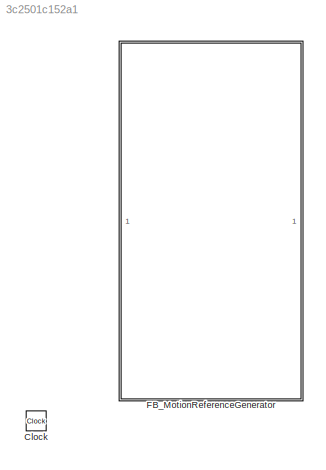
MODEL slx_3c2501c152a1
KIND model
CONFIG AbsTol = auto
CONFIG EnableMultiTasking = off
CONFIG FixedStep = 0.001
CONFIG MaxStep = auto
CONFIG MinStep = auto
CONFIG RelTol = 1e-3
CONFIG SampleTimeConstraint = Unconstrained
CONFIG SolverName = FixedStepDiscrete
CONFIG StartTime = 0.0
CONFIG StopTime = 40
BLOCK [Clock] Clock
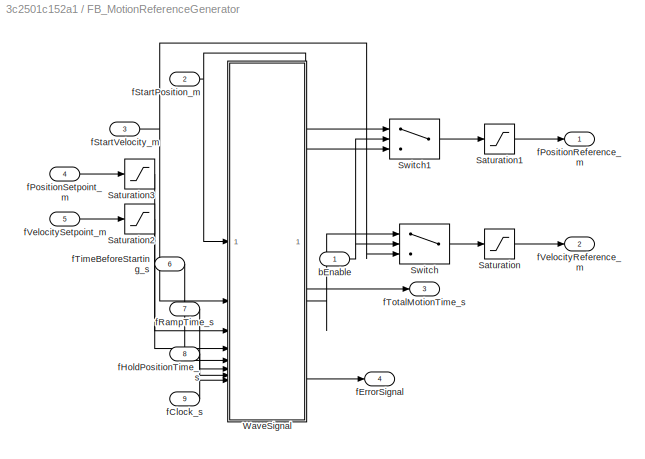
BLOCK [SubSystem] FB_MotionReferenceGenerator
  TreatAsAtomicUnit = on
  VariantControl = Ramp_Profile
BLOCK [Saturate] FB_MotionReferenceGenerator/Saturation
  LowerLimit = -0.05
  UpperLimit = 0.05
BLOCK [Saturate] FB_MotionReferenceGenerator/Saturation1
  LowerLimit = 0
  UpperLimit = 0.45
BLOCK [Saturate] FB_MotionReferenceGenerator/Saturation2
  LowerLimit = 0
  UpperLimit = 0.05
BLOCK [Saturate] FB_MotionReferenceGenerator/Saturation3
  LowerLimit = 0
  UpperLimit = 0.45
BLOCK [Switch] FB_MotionReferenceGenerator/Switch
  Criteria = u2 > Threshold
  InputSameDT = off
  SaturateOnIntegerOverflow = off
BLOCK [Switch] FB_MotionReferenceGenerator/Switch1
  Criteria = u2 > Threshold
  InputSameDT = off
  SaturateOnIntegerOverflow = off
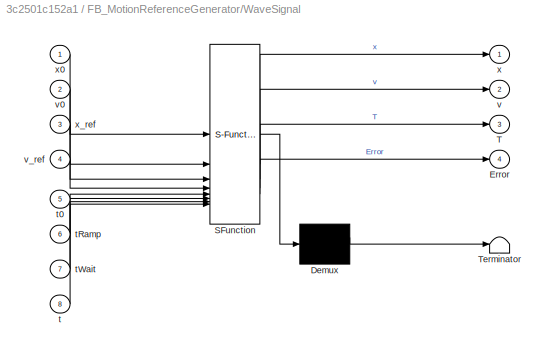
BLOCK [SubSystem] FB_MotionReferenceGenerator/WaveSignal
  ErrorFcn = Stateflow.Translate.translate
  PermitHierarchicalResolution = ExplicitOnly
  SFBlockType = MATLAB Function
  TreatAsAtomicUnit = on
BLOCK [Demux] FB_MotionReferenceGenerator/WaveSignal/ Demux 
  Outputs = 1
BLOCK [S-Function] FB_MotionReferenceGenerator/WaveSignal/ SFunction 
  EnableBusSupport = on
  FunctionName = sf_sfun
  PortCounts = [8 5]
  SFcnIsStateOwnerBlock = off
  SFunctionDeploymentMode = off
  Tag = Stateflow S-Function 16
BLOCK [Terminator] FB_MotionReferenceGenerator/WaveSignal/ Terminator 
BLOCK [Outport] FB_MotionReferenceGenerator/WaveSignal/Error
  Port = 4
  VectorParamsAs1DForOutWhenUnconnected = off
BLOCK [Outport] FB_MotionReferenceGenerator/WaveSignal/T
  Port = 3
  VectorParamsAs1DForOutWhenUnconnected = off
BLOCK [Inport] FB_MotionReferenceGenerator/WaveSignal/t
  Port = 8
BLOCK [Inport] FB_MotionReferenceGenerator/WaveSignal/t0
  Port = 5
BLOCK [Inport] FB_MotionReferenceGenerator/WaveSignal/tRamp
  Port = 6
BLOCK [Inport] FB_MotionReferenceGenerator/WaveSignal/tWait
  Port = 7
BLOCK [Outport] FB_MotionReferenceGenerator/WaveSignal/v
  Port = 2
  VectorParamsAs1DForOutWhenUnconnected = off
BLOCK [Inport] FB_MotionReferenceGenerator/WaveSignal/v0
  Port = 2
BLOCK [Inport] FB_MotionReferenceGenerator/WaveSignal/v_ref
  Port = 4
BLOCK [Outport] FB_MotionReferenceGenerator/WaveSignal/x
  VectorParamsAs1DForOutWhenUnconnected = off
BLOCK [Inport] FB_MotionReferenceGenerator/WaveSignal/x0
BLOCK [Inport] FB_MotionReferenceGenerator/WaveSignal/x_ref
  Port = 3
BLOCK [Inport] FB_MotionReferenceGenerator/bEnable
  OutDataTypeStr = boolean
BLOCK [Inport] FB_MotionReferenceGenerator/fClock_s
  Port = 9
BLOCK [Outport] FB_MotionReferenceGenerator/fErrorSignal
  Port = 4
  VectorParamsAs1DForOutWhenUnconnected = off
BLOCK [Inport] FB_MotionReferenceGenerator/fHoldPositionTime_s
  Port = 8
BLOCK [Outport] FB_MotionReferenceGenerator/fPositionReference_m
  VectorParamsAs1DForOutWhenUnconnected = off
BLOCK [Inport] FB_MotionReferenceGenerator/fPositionSetpoint_m
  Port = 4
BLOCK [Inport] FB_MotionReferenceGenerator/fRampTime_s
  Port = 7
BLOCK [Inport] FB_MotionReferenceGenerator/fStartPosition_m
  Port = 2
BLOCK [Inport] FB_MotionReferenceGenerator/fStartVelocity_m
  Port = 3
BLOCK [Inport] FB_MotionReferenceGenerator/fTimeBeforeStarting_s
  Port = 6
BLOCK [Outport] FB_MotionReferenceGenerator/fTotalMotionTime_s
  Port = 3
  VectorParamsAs1DForOutWhenUnconnected = off
BLOCK [Outport] FB_MotionReferenceGenerator/fVelocityReference_m
  Port = 2
  VectorParamsAs1DForOutWhenUnconnected = off
BLOCK [Inport] FB_MotionReferenceGenerator/fVelocitySetpoint_m
  Port = 5
LINE FB_MotionReferenceGenerator/Saturation1:1 -> FB_MotionReferenceGenerator/fPositionReference_m:1
LINE FB_MotionReferenceGenerator/Saturation2:1 -> FB_MotionReferenceGenerator/WaveSignal:4
LINE FB_MotionReferenceGenerator/Saturation3:1 -> FB_MotionReferenceGenerator/WaveSignal:3
LINE FB_MotionReferenceGenerator/Saturation:1 -> FB_MotionReferenceGenerator/fVelocityReference_m:1
LINE FB_MotionReferenceGenerator/Switch1:1 -> FB_MotionReferenceGenerator/Saturation1:1
LINE FB_MotionReferenceGenerator/Switch:1 -> FB_MotionReferenceGenerator/Saturation:1
LINE FB_MotionReferenceGenerator/WaveSignal:1 -> FB_MotionReferenceGenerator/Switch1:1
LINE FB_MotionReferenceGenerator/WaveSignal:2 -> FB_MotionReferenceGenerator/Switch:1
LINE FB_MotionReferenceGenerator/WaveSignal:3 -> FB_MotionReferenceGenerator/fTotalMotionTime_s:1
LINE FB_MotionReferenceGenerator/WaveSignal:4 -> FB_MotionReferenceGenerator/fErrorSignal:1
NET FB_MotionReferenceGenerator/bEnable:1 -> FB_MotionReferenceGenerator/Switch1:2, FB_MotionReferenceGenerator/Switch:2
LINE FB_MotionReferenceGenerator/fClock_s:1 -> FB_MotionReferenceGenerator/WaveSignal:8
LINE FB_MotionReferenceGenerator/fHoldPositionTime_s:1 -> FB_MotionReferenceGenerator/WaveSignal:7
LINE FB_MotionReferenceGenerator/fPositionSetpoint_m:1 -> FB_MotionReferenceGenerator/Saturation3:1
LINE FB_MotionReferenceGenerator/fRampTime_s:1 -> FB_MotionReferenceGenerator/WaveSignal:6
NET FB_MotionReferenceGenerator/fStartPosition_m:1 -> FB_MotionReferenceGenerator/Switch1:3, FB_MotionReferenceGenerator/WaveSignal:1
NET FB_MotionReferenceGenerator/fStartVelocity_m:1 -> FB_MotionReferenceGenerator/Switch:3, FB_MotionReferenceGenerator/WaveSignal:2
LINE FB_MotionReferenceGenerator/fTimeBeforeStarting_s:1 -> FB_MotionReferenceGenerator/WaveSignal:5
LINE FB_MotionReferenceGenerator/fVelocitySetpoint_m:1 -> FB_MotionReferenceGenerator/Saturation2:1
note: NET lines group one-source signal fan-out (src -> all destinations, sorted); 1:1 wires keep LINE
CHART FB_MotionReferenceGenerator/WaveSignal states=1 transitions=1
  STATE_LABEL 'eML_blk_kernel()'
  STATE_LABEL 'SCRIPT:\nfunction [x,v,T, Error] = fcn(x0,v0, x_ref,v_ref,t0,tRamp,tWait,t)\nx_SP = x_ref - x0;\nvs=v_ref;\nslopeExt=v0-vs;\nslopeRetr=-vs-v0;\n\nas = vs/tRamp;\ns_acc=(vs^2-v0^2)/as;\n\ntHold=(x_SP-s_acc)/vs;\n\nif tHold < 0 \nError = 1;\nelse \nError = 0;\nend\n\nt1=tRamp;\nt2=tHold; \nt3=tRamp;\nt4=tWait;\nt5=t1;\nt6=t2;\nt7=t3;\n\nx = x0;\nx1 = x0 + v0*((t0+t1)-t0)-(slopeExt/t1)*((t0+t1)-t0)^2/2;\nx2 = x1 + vs*((t0+t1+t2...<+1188ch>'
CHART  states=0 transitions=0
